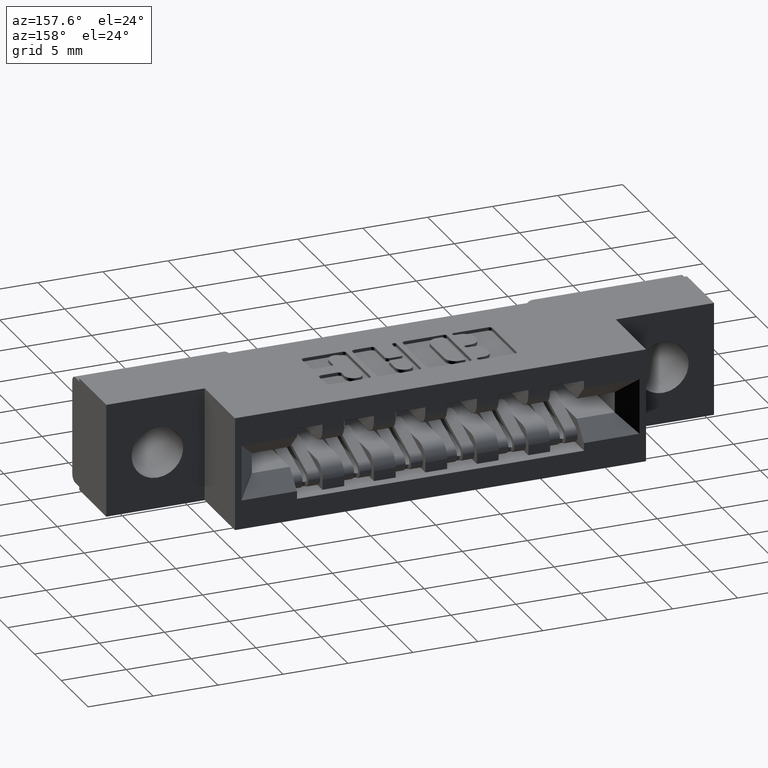
[diagram: clean part render]
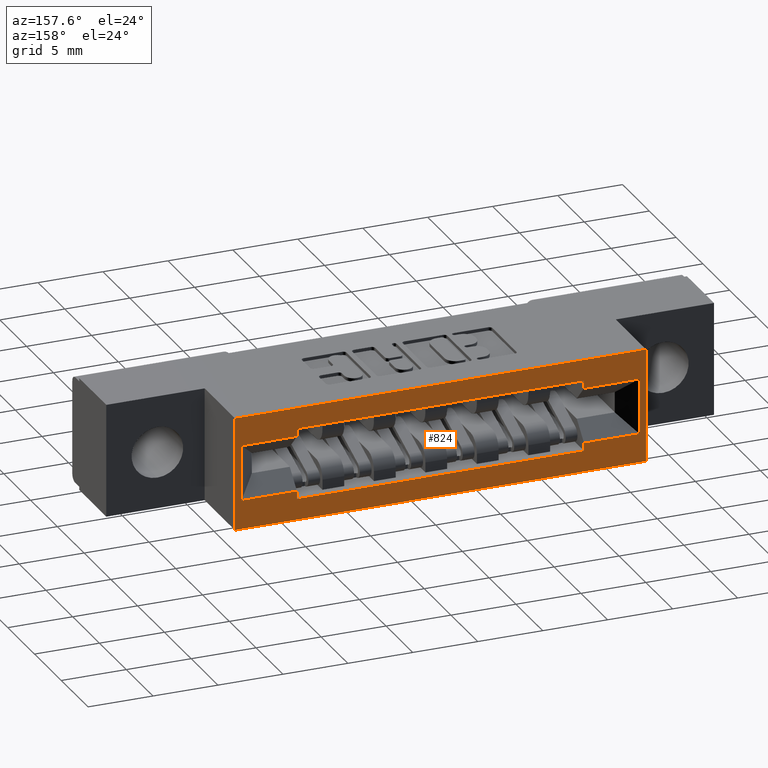
[diagram: same view with one face highlighted and labeled with its STEP entity id]
A machine part, auxiliary view. The second image highlights one B-rep face of the part: STEP entity #824.
In plain terms, the highlighted planar face has unit normal (0, -1, 0).
Its self-contained STEP definition (entity closure, byte-faithful):
#69 = VECTOR ( 'NONE', #7863, 39.37007874015748100 ) ;
#99 = ORIENTED_EDGE ( 'NONE', *, *, #478, .F. ) ;
#124 = VERTEX_POINT ( 'NONE', #4254 ) ;
#141 = DIRECTION ( 'NONE',  ( -1.000000000000000000, 0.0000000000000000000, 0.0000000000000000000 ) ) ;
#286 = VECTOR ( 'NONE', #2323, 39.37007874015748100 ) ;
#328 = VERTEX_POINT ( 'NONE', #5152 ) ;
#395 = LINE ( 'NONE', #8666, #5328 ) ;
#396 = ORIENTED_EDGE ( 'NONE', *, *, #4968, .F. ) ;
#478 = EDGE_CURVE ( 'NONE', #7440, #6650, #6898, .T. ) ;
#498 = ORIENTED_EDGE ( 'NONE', *, *, #8230, .T. ) ;
#563 = FACE_BOUND ( 'NONE', #794, .T. ) ;
#584 = DIRECTION ( 'NONE',  ( -1.000000000000000000, -0.0000000000000000000, -0.0000000000000000000 ) ) ;
#611 = EDGE_CURVE ( 'NONE', #4451, #8236, #3545, .T. ) ;
#794 = EDGE_LOOP ( 'NONE', ( #2526, #7797, #8617, #6911, #6718, #4802, #9224, #5241, #396, #99, #3722, #6084 ) ) ;
#824 = ADVANCED_FACE ( 'NONE', ( #563, #7134 ), #3422, .F. ) ;
#844 = LINE ( 'NONE', #3975, #8346 ) ;
#940 = LINE ( 'NONE', #3874, #7299 ) ;
#955 = CARTESIAN_POINT ( 'NONE',  ( 1.524000000000000900, 0.4729999999999999800, -0.08749999999999993900 ) ) ;
#1018 = CARTESIAN_POINT ( 'NONE',  ( 0.3179999999999994500, 0.4729999999999999800, -0.08749999999999989700 ) ) ;
#1022 = EDGE_CURVE ( 'NONE', #328, #7440, #8754, .T. ) ;
#1037 = VECTOR ( 'NONE', #6072, 39.37007874015748100 ) ;
#1193 = DIRECTION ( 'NONE',  ( -0.0000000000000000000, -0.0000000000000000000, 1.000000000000000000 ) ) ;
#1516 = VECTOR ( 'NONE', #1193, 39.37007874015748100 ) ;
#1701 = VERTEX_POINT ( 'NONE', #6403 ) ;
#1799 = CARTESIAN_POINT ( 'NONE',  ( 0.2980000000000000400, 0.4729999999999999800, 0.0000000000000000000 ) ) ;
#2077 = CARTESIAN_POINT ( 'NONE',  ( 0.0000000000000000000, 0.4729999999999999800, 0.0000000000000000000 ) ) ;
#2323 = DIRECTION ( 'NONE',  ( 1.000000000000000000, 0.0000000000000000000, -3.104372720073023500E-017 ) ) ;
#2526 = ORIENTED_EDGE ( 'NONE', *, *, #4347, .T. ) ;
#2535 = CARTESIAN_POINT ( 'NONE',  ( 7.931672299786577900E-018, 0.4729999999999999800, -0.08749999999999992500 ) ) ;
#2609 = EDGE_CURVE ( 'NONE', #8718, #7868, #8826, .T. ) ;
#2644 = VERTEX_POINT ( 'NONE', #6233 ) ;
#2788 = EDGE_CURVE ( 'NONE', #328, #4399, #395, .T. ) ;
#3055 = EDGE_CURVE ( 'NONE', #6409, #3069, #844, .T. ) ;
#3069 = VERTEX_POINT ( 'NONE', #8372 ) ;
#3088 = VERTEX_POINT ( 'NONE', #3940 ) ;
#3097 = VECTOR ( 'NONE', #5466, 39.37007874015748100 ) ;
#3163 = CARTESIAN_POINT ( 'NONE',  ( 0.4860000000000003800, 0.4729999999999999800, -0.06400000000000008500 ) ) ;
#3187 = EDGE_CURVE ( 'NONE', #124, #1701, #3479, .T. ) ;
#3336 = DIRECTION ( 'NONE',  ( -1.000000000000000000, 0.0000000000000000000, 3.104372720073023500E-017 ) ) ;
#3384 = CARTESIAN_POINT ( 'NONE',  ( 0.4860000000000003800, 0.4729999999999999800, -0.06400000000000008500 ) ) ;
#3422 = PLANE ( 'NONE',  #5870 ) ;
#3428 = LINE ( 'NONE', #5989, #5762 ) ;
#3454 = DIRECTION ( 'NONE',  ( 0.0000000000000000000, -1.000000000000000000, 0.0000000000000000000 ) ) ;
#3479 = LINE ( 'NONE', #3384, #1516 ) ;
#3545 = LINE ( 'NONE', #2535, #7954 ) ;
#3662 = CARTESIAN_POINT ( 'NONE',  ( 0.3179999999999994500, 0.4729999999999999800, -0.2555000000000002300 ) ) ;
#3685 = VECTOR ( 'NONE', #8760, 39.37007874015748100 ) ;
#3722 = ORIENTED_EDGE ( 'NONE', *, *, #1022, .F. ) ;
#3867 = CARTESIAN_POINT ( 'NONE',  ( 1.356000000000000500, 0.4729999999999999800, -0.06399999999999994600 ) ) ;
#3874 = CARTESIAN_POINT ( 'NONE',  ( 0.3179999999999994500, 0.4729999999999999800, -0.3430000000000000300 ) ) ;
#3940 = CARTESIAN_POINT ( 'NONE',  ( 0.2980000000000001000, 0.4729999999999999800, -0.3430000000000000300 ) ) ;
#3975 = CARTESIAN_POINT ( 'NONE',  ( 2.716326130063888100E-018, 0.4729999999999999800, -0.2555000000000002300 ) ) ;
#4026 = LINE ( 'NONE', #3867, #1037 ) ;
#4054 = VERTEX_POINT ( 'NONE', #1799 ) ;
#4098 = DIRECTION ( 'NONE',  ( 0.0000000000000000000, 0.0000000000000000000, -1.000000000000000000 ) ) ;
#4169 = DIRECTION ( 'NONE',  ( 0.0000000000000000000, -0.0000000000000000000, -1.000000000000000000 ) ) ;
#4229 = VERTEX_POINT ( 'NONE', #3662 ) ;
#4245 = CARTESIAN_POINT ( 'NONE',  ( 1.356000000000000500, 0.4729999999999999800, -0.06399999999999994600 ) ) ;
#4254 = CARTESIAN_POINT ( 'NONE',  ( 0.4860000000000003800, 0.4729999999999999800, -0.2790000000000000800 ) ) ;
#4347 = EDGE_CURVE ( 'NONE', #4399, #4229, #940, .T. ) ;
#4399 = VERTEX_POINT ( 'NONE', #1018 ) ;
#4451 = VERTEX_POINT ( 'NONE', #955 ) ;
#4802 = ORIENTED_EDGE ( 'NONE', *, *, #3055, .T. ) ;
#4809 = CARTESIAN_POINT ( 'NONE',  ( 1.544000000000000700, 0.4729999999999999800, 0.0000000000000000000 ) ) ;
#4827 = EDGE_CURVE ( 'NONE', #2644, #124, #7049, .T. ) ;
#4849 = CARTESIAN_POINT ( 'NONE',  ( 1.544000000000000700, 0.4729999999999999800, -0.3430000000000000300 ) ) ;
#4876 = VECTOR ( 'NONE', #4098, 39.37007874015748100 ) ;
#4968 = EDGE_CURVE ( 'NONE', #6650, #8236, #4026, .T. ) ;
#4976 = CARTESIAN_POINT ( 'NONE',  ( 0.0000000000000000000, 0.4729999999999999800, -0.3430000000000000300 ) ) ;
#5006 = DIRECTION ( 'NONE',  ( -1.000000000000000000, 0.0000000000000000000, 3.104372720073023500E-017 ) ) ;
#5105 = VECTOR ( 'NONE', #584, 39.37007874015748100 ) ;
#5152 = CARTESIAN_POINT ( 'NONE',  ( 0.4860000000000003800, 0.4729999999999999800, -0.08749999999999989700 ) ) ;
#5241 = ORIENTED_EDGE ( 'NONE', *, *, #611, .T. ) ;
#5255 = EDGE_CURVE ( 'NONE', #4054, #8718, #5659, .T. ) ;
#5328 = VECTOR ( 'NONE', #5006, 39.37007874015748100 ) ;
#5357 = DIRECTION ( 'NONE',  ( 0.0000000000000000000, 0.0000000000000000000, -1.000000000000000000 ) ) ;
#5466 = DIRECTION ( 'NONE',  ( 1.000000000000000000, -0.0000000000000000000, -1.897116662266849500E-016 ) ) ;
#5528 = EDGE_LOOP ( 'NONE', ( #8324, #498, #6615, #7254 ) ) ;
#5659 = LINE ( 'NONE', #2077, #3685 ) ;
#5762 = VECTOR ( 'NONE', #9024, 39.37007874015748100 ) ;
#5797 = CARTESIAN_POINT ( 'NONE',  ( 1.356000000000000500, 0.4729999999999999800, -0.08749999999999993900 ) ) ;
#5870 = AXIS2_PLACEMENT_3D ( 'NONE', #8612, #3454, #4169 ) ;
#5933 = VECTOR ( 'NONE', #6905, 39.37007874015748100 ) ;
#5989 = CARTESIAN_POINT ( 'NONE',  ( 1.524000000000000900, 0.4729999999999999800, -0.3430000000000000300 ) ) ;
#6072 = DIRECTION ( 'NONE',  ( 0.0000000000000000000, 0.0000000000000000000, -1.000000000000000000 ) ) ;
#6084 = ORIENTED_EDGE ( 'NONE', *, *, #2788, .T. ) ;
#6151 = EDGE_CURVE ( 'NONE', #3069, #4451, #3428, .T. ) ;
#6233 = CARTESIAN_POINT ( 'NONE',  ( 1.356000000000000500, 0.4729999999999999800, -0.2790000000000000800 ) ) ;
#6295 = CARTESIAN_POINT ( 'NONE',  ( 0.2979999999999999900, 0.4729999999999999800, 1.186721140104883800E-016 ) ) ;
#6358 = CARTESIAN_POINT ( 'NONE',  ( 1.356000000000000500, 0.4729999999999999800, -0.2555000000000002800 ) ) ;
#6403 = CARTESIAN_POINT ( 'NONE',  ( 0.4860000000000003800, 0.4729999999999999800, -0.2555000000000002300 ) ) ;
#6409 = VERTEX_POINT ( 'NONE', #6358 ) ;
#6419 = CARTESIAN_POINT ( 'NONE',  ( 1.544000000000000700, 0.4729999999999999800, 0.0000000000000000000 ) ) ;
#6615 = ORIENTED_EDGE ( 'NONE', *, *, #7348, .F. ) ;
#6650 = VERTEX_POINT ( 'NONE', #8887 ) ;
#6718 = ORIENTED_EDGE ( 'NONE', *, *, #8051, .F. ) ;
#6777 = VECTOR ( 'NONE', #6933, 39.37007874015748100 ) ;
#6898 = LINE ( 'NONE', #8293, #3097 ) ;
#6905 = DIRECTION ( 'NONE',  ( 3.982285705049946100E-016, 0.0000000000000000000, -1.000000000000000000 ) ) ;
#6911 = ORIENTED_EDGE ( 'NONE', *, *, #4827, .F. ) ;
#6933 = DIRECTION ( 'NONE',  ( -0.0000000000000000000, -0.0000000000000000000, 1.000000000000000000 ) ) ;
#6944 = DIRECTION ( 'NONE',  ( 1.000000000000000000, 0.0000000000000000000, -3.104372720073023500E-017 ) ) ;
#7049 = LINE ( 'NONE', #7464, #9258 ) ;
#7134 = FACE_OUTER_BOUND ( 'NONE', #5528, .T. ) ;
#7211 = LINE ( 'NONE', #4245, #69 ) ;
#7254 = ORIENTED_EDGE ( 'NONE', *, *, #5255, .T. ) ;
#7299 = VECTOR ( 'NONE', #5357, 39.37007874015748100 ) ;
#7348 = EDGE_CURVE ( 'NONE', #4054, #3088, #8123, .T. ) ;
#7396 = CARTESIAN_POINT ( 'NONE',  ( 2.716326130063888100E-018, 0.4729999999999999800, -0.2555000000000002300 ) ) ;
#7440 = VERTEX_POINT ( 'NONE', #9146 ) ;
#7464 = CARTESIAN_POINT ( 'NONE',  ( 0.5760000000000004000, 0.4729999999999999800, -0.2790000000000000800 ) ) ;
#7609 = EDGE_CURVE ( 'NONE', #4229, #1701, #8010, .T. ) ;
#7797 = ORIENTED_EDGE ( 'NONE', *, *, #7609, .T. ) ;
#7863 = DIRECTION ( 'NONE',  ( 0.0000000000000000000, 0.0000000000000000000, -1.000000000000000000 ) ) ;
#7868 = VERTEX_POINT ( 'NONE', #4849 ) ;
#7954 = VECTOR ( 'NONE', #3336, 39.37007874015748100 ) ;
#8010 = LINE ( 'NONE', #7396, #286 ) ;
#8051 = EDGE_CURVE ( 'NONE', #6409, #2644, #7211, .T. ) ;
#8123 = LINE ( 'NONE', #6295, #5933 ) ;
#8230 = EDGE_CURVE ( 'NONE', #7868, #3088, #8239, .T. ) ;
#8236 = VERTEX_POINT ( 'NONE', #5797 ) ;
#8239 = LINE ( 'NONE', #4976, #5105 ) ;
#8293 = CARTESIAN_POINT ( 'NONE',  ( 0.5760000000000004000, 0.4729999999999999800, -0.06400000000000011200 ) ) ;
#8324 = ORIENTED_EDGE ( 'NONE', *, *, #2609, .T. ) ;
#8346 = VECTOR ( 'NONE', #6944, 39.37007874015748100 ) ;
#8372 = CARTESIAN_POINT ( 'NONE',  ( 1.524000000000000900, 0.4729999999999999800, -0.2555000000000002800 ) ) ;
#8612 = CARTESIAN_POINT ( 'NONE',  ( 0.0000000000000000000, 0.4729999999999999800, -0.3430000000000000300 ) ) ;
#8617 = ORIENTED_EDGE ( 'NONE', *, *, #3187, .F. ) ;
#8666 = CARTESIAN_POINT ( 'NONE',  ( 7.931672299786577900E-018, 0.4729999999999999800, -0.08749999999999988300 ) ) ;
#8718 = VERTEX_POINT ( 'NONE', #6419 ) ;
#8754 = LINE ( 'NONE', #3163, #6777 ) ;
#8760 = DIRECTION ( 'NONE',  ( 1.000000000000000000, 0.0000000000000000000, 0.0000000000000000000 ) ) ;
#8826 = LINE ( 'NONE', #4809, #4876 ) ;
#8887 = CARTESIAN_POINT ( 'NONE',  ( 1.356000000000000500, 0.4729999999999999800, -0.06399999999999994600 ) ) ;
#9024 = DIRECTION ( 'NONE',  ( 0.0000000000000000000, 0.0000000000000000000, 1.000000000000000000 ) ) ;
#9146 = CARTESIAN_POINT ( 'NONE',  ( 0.4860000000000003800, 0.4729999999999999800, -0.06400000000000008500 ) ) ;
#9224 = ORIENTED_EDGE ( 'NONE', *, *, #6151, .T. ) ;
#9258 = VECTOR ( 'NONE', #141, 39.37007874015748100 ) ;